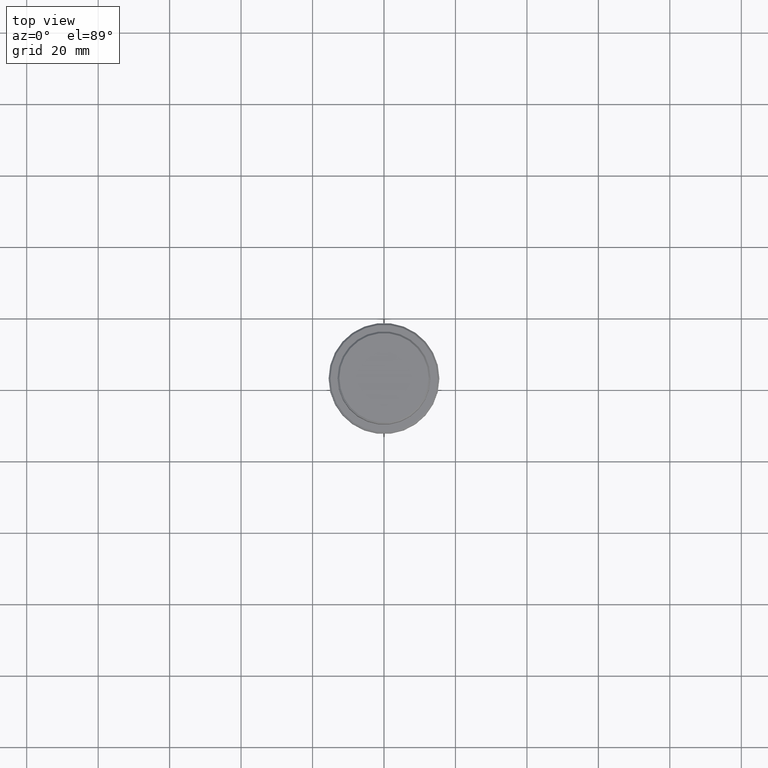
[diagram: clean part render]
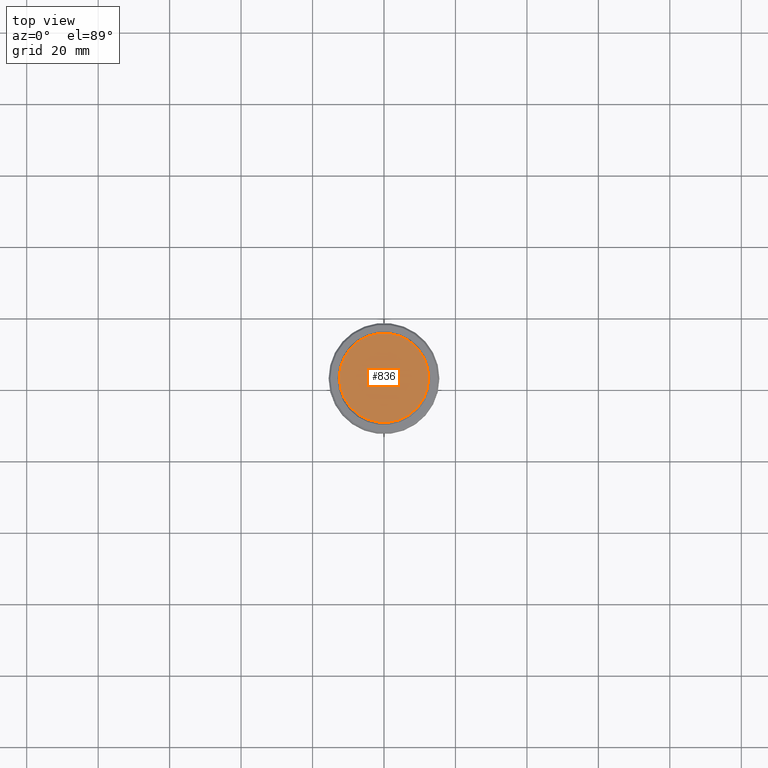
[diagram: same view with one face highlighted and labeled with its STEP entity id]
A machine part, top view. The second image highlights one B-rep face of the part: STEP entity #836.
In plain terms, the highlighted planar face has unit normal (0, -0, 1).
Its self-contained STEP definition (entity closure, byte-faithful):
#84 = DIRECTION ( 'NONE',  ( -0.000000000000000000, -0.000000000000000000, 1.000000000000000000 ) ) ;
#102 = DIRECTION ( 'NONE',  ( 0.000000000000000000, -0.000000000000000000, 1.000000000000000000 ) ) ;
#155 = ORIENTED_EDGE ( 'NONE', *, *, #192, .T. ) ;
#192 = EDGE_CURVE ( 'NONE', #1384, #734, #568, .T. ) ;
#221 = CARTESIAN_POINT ( 'NONE',  ( 0.000000000000000000, 0.000000000000000000, 0.000000000000000000 ) ) ;
#232 = CARTESIAN_POINT ( 'NONE',  ( 0.000000000000000000, 0.000000000000000000, 0.000000000000000000 ) ) ;
#279 = ORIENTED_EDGE ( 'NONE', *, *, #664, .T. ) ;
#544 = DIRECTION ( 'NONE',  ( 1.000000000000000000, 0.000000000000000000, 0.000000000000000000 ) ) ;
#562 = CARTESIAN_POINT ( 'NONE',  ( -12.49999999999998579, 0.000000000000000000, 0.000000000000000000 ) ) ;
#568 = CIRCLE ( 'NONE', #840, 12.49999999999998579 ) ;
#651 = DIRECTION ( 'NONE',  ( -0.000000000000000000, -0.000000000000000000, 1.000000000000000000 ) ) ;
#664 = EDGE_CURVE ( 'NONE', #734, #1384, #1393, .T. ) ;
#734 = VERTEX_POINT ( 'NONE', #1068 ) ;
#756 = DIRECTION ( 'NONE',  ( 1.000000000000000000, 0.000000000000000000, 0.000000000000000000 ) ) ;
#768 = AXIS2_PLACEMENT_3D ( 'NONE', #948, #84, #1367 ) ;
#836 = ADVANCED_FACE ( 'NONE', ( #854 ), #1288, .T. ) ;
#840 = AXIS2_PLACEMENT_3D ( 'NONE', #221, #651, #544 ) ;
#854 = FACE_OUTER_BOUND ( 'NONE', #1314, .T. ) ;
#948 = CARTESIAN_POINT ( 'NONE',  ( 0.000000000000000000, 0.000000000000000000, 0.000000000000000000 ) ) ;
#1068 = CARTESIAN_POINT ( 'NONE',  ( 12.49999999999998579, 1.561424668912874125E-15, 0.000000000000000000 ) ) ;
#1288 = PLANE ( 'NONE',  #1365 ) ;
#1314 = EDGE_LOOP ( 'NONE', ( #155, #279 ) ) ;
#1365 = AXIS2_PLACEMENT_3D ( 'NONE', #232, #102, #756 ) ;
#1367 = DIRECTION ( 'NONE',  ( 1.000000000000000000, 0.000000000000000000, 0.000000000000000000 ) ) ;
#1384 = VERTEX_POINT ( 'NONE', #562 ) ;
#1393 = CIRCLE ( 'NONE', #768, 12.49999999999998579 ) ;